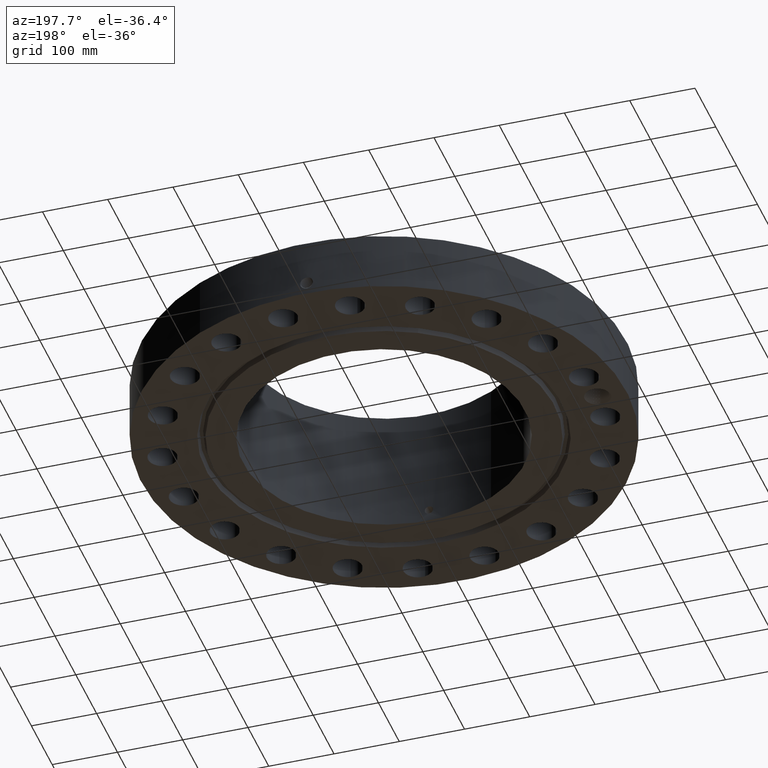
[diagram: clean part render]
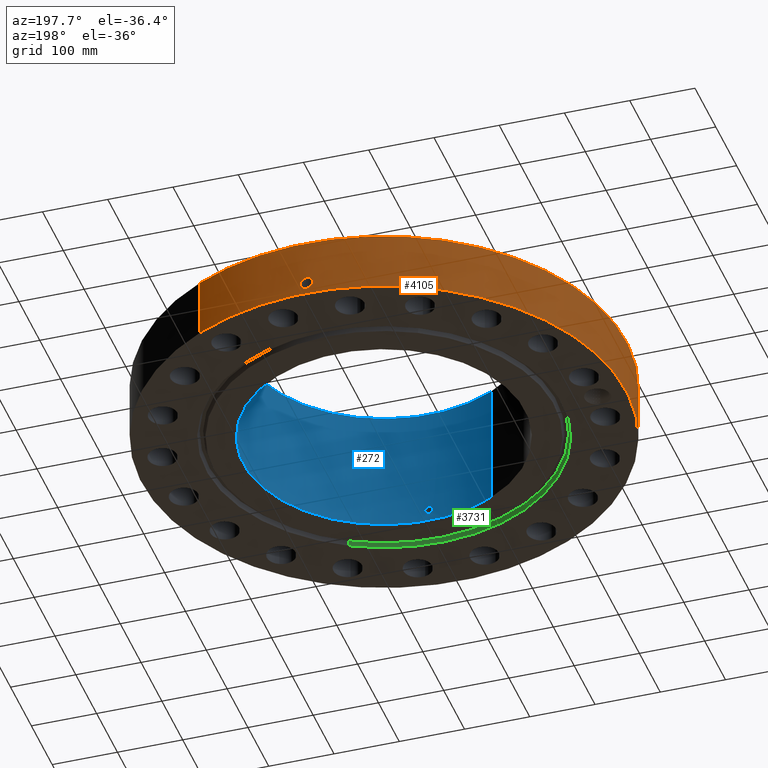
[diagram: same view with three faces highlighted in distinct colors, each labeled with its STEP entity id]
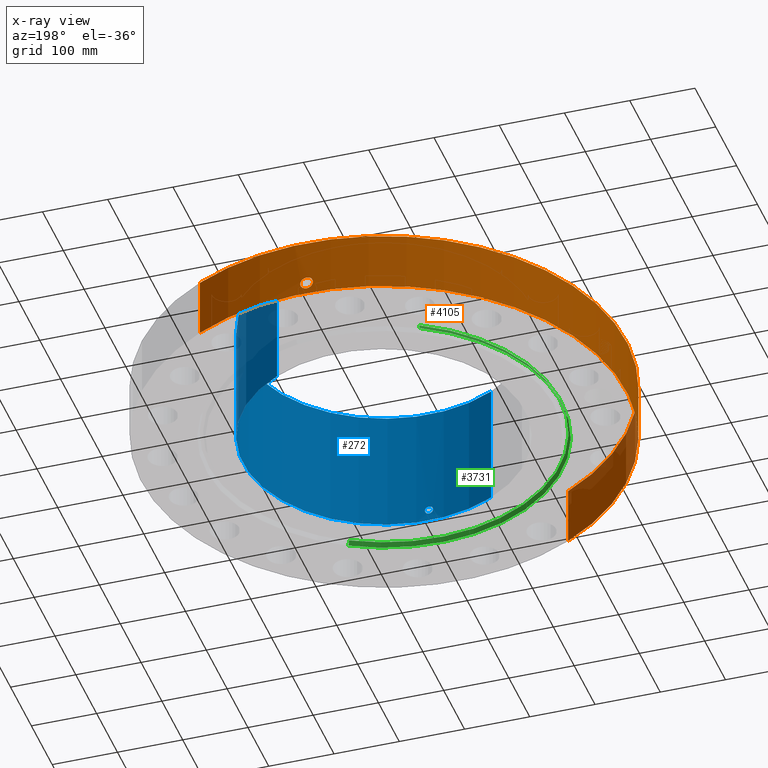
[diagram: x-ray of the same camera — body ghosted, the three highlighted faces saturated]
A machine part, auxiliary view with three faces highlighted in distinct colors.
The next image is the same camera in x-ray (body ghosted, the three faces saturated) — at least one of them is partly hidden behind the body in this view.
Their STEP definitions:

[orange] entity #4105 — the highlighted cylindrical surface (partial cylindrical patch) has radius 371.475 mm, axis along (0, 0, -1).
#2927=AXIS2_PLACEMENT_3D('Circle Axis2P3D',#2925,#2926,$) ;
#3991=AXIS2_PLACEMENT_3D('Cylinder Axis2P3D',#3988,#3989,#3990) ;
#3995=AXIS2_PLACEMENT_3D('Circle Axis2P3D',#3993,#3994,$) ;
#2920=CARTESIAN_POINT('Vertex',(7.01159850211,12.8346449677,3.56200000001)) ;
#2922=CARTESIAN_POINT('Vertex',(-7.01159850211,-12.8346449677,3.56200000001)) ;
#2925=CARTESIAN_POINT('Axis2P3D Location',(0.,0.,3.56200000001)) ;
#3988=CARTESIAN_POINT('Axis2P3D Location',(0.,0.,3.78100000002)) ;
#3993=CARTESIAN_POINT('Axis2P3D Location',(0.,0.,1.67844740731E-015)) ;
#3997=CARTESIAN_POINT('Vertex',(-7.01159850211,-12.8346449677,2.23792987641E-015)) ;
#3999=CARTESIAN_POINT('Vertex',(7.01159850211,12.8346449677,2.23792987641E-015)) ;
#4002=CARTESIAN_POINT('Line Origine',(-7.01159850211,-12.8346449677,1.78100000001)) ;
#4007=CARTESIAN_POINT('Line Origine',(7.01159850211,12.8346449677,1.78100000001)) ;
#4019=CARTESIAN_POINT('Control Point',(-0.000716086753315,14.6249999825,1.1041184612)) ;
#4020=CARTESIAN_POINT('Control Point',(-0.0190203187329,14.6249990863,1.10408148988)) ;
#4021=CARTESIAN_POINT('Control Point',(-0.0373213430736,14.6249635537,1.10262130561)) ;
#4022=CARTESIAN_POINT('Control Point',(-0.0553996221658,14.6248950726,1.09975560669)) ;
#4023=CARTESIAN_POINT('Vertex',(-0.000715719218029,14.6249999825,1.10411851049)) ;
#4025=CARTESIAN_POINT('Vertex',(-0.0553907382761,14.6248953593,1.09975703323)) ;
#4029=CARTESIAN_POINT('Control Point',(-0.0553906426159,14.6248951066,1.09975648393)) ;
#4030=CARTESIAN_POINT('Control Point',(-0.095791087221,14.6247420931,1.09531626056)) ;
#4031=CARTESIAN_POINT('Control Point',(-0.135547313126,14.6244176887,1.08352583264)) ;
#4032=CARTESIAN_POINT('Control Point',(-0.172161792286,14.6239866425,1.06517074421)) ;
#4033=CARTESIAN_POINT('Vertex',(-0.172161792286,14.6239866425,1.06517074421)) ;
#4037=CARTESIAN_POINT('Control Point',(-0.0309704717696,14.6249672079,0.341185931315)) ;
#4038=CARTESIAN_POINT('Control Point',(-0.0960970499705,14.624829293,0.34943039741)) ;
#4039=CARTESIAN_POINT('Control Point',(-0.159165957785,14.6243332142,0.37129232546)) ;
#4040=CARTESIAN_POINT('Control Point',(-0.21621629432,14.6235308002,0.406104490882)) ;
#4041=CARTESIAN_POINT('Control Point',(-0.288565984677,14.6222181906,0.474194043714)) ;
#4042=CARTESIAN_POINT('Control Point',(-0.336122439635,14.6211483161,0.558637787357)) ;
#4043=CARTESIAN_POINT('Control Point',(-0.349159052226,14.6208369788,0.588701529227)) ;
#4044=CARTESIAN_POINT('Control Point',(-0.371366298723,14.620290059,0.658954862142)) ;
#4045=CARTESIAN_POINT('Control Point',(-0.37685243339,14.6201424353,0.732133985844)) ;
#4046=CARTESIAN_POINT('Control Point',(-0.374588858488,14.620202394,0.772952421598)) ;
#4047=CARTESIAN_POINT('Control Point',(-0.356196992635,14.620681159,0.870678338789)) ;
#4048=CARTESIAN_POINT('Control Point',(-0.307903907606,14.6218049341,0.957874328974)) ;
#4049=CARTESIAN_POINT('Control Point',(-0.269657987083,14.6226140453,1.00315422222)) ;
#4050=CARTESIAN_POINT('Control Point',(-0.223443498129,14.6233829254,1.03946287241)) ;
#4051=CARTESIAN_POINT('Control Point',(-0.172161792286,14.6239866425,1.06517074421)) ;
#4052=CARTESIAN_POINT('Vertex',(-0.0309704717696,14.6249672079,0.341185931315)) ;
#4056=CARTESIAN_POINT('Control Point',(-0.0309704717696,14.6249672079,0.341185931315)) ;
#4057=CARTESIAN_POINT('Control Point',(-0.0206420517921,14.6249890798,0.340874084726)) ;
#4058=CARTESIAN_POINT('Control Point',(-0.0103062211378,14.625000002,0.340937171896)) ;
#4059=CARTESIAN_POINT('Control Point',(2.72878356085E-006,14.6250000001,0.341374667805)) ;
#4060=CARTESIAN_POINT('Vertex',(2.72878354058E-006,14.6250000001,0.341374667805)) ;
#4064=CARTESIAN_POINT('Control Point',(0.192662631068,14.6237309231,0.397344435508)) ;
#4065=CARTESIAN_POINT('Control Point',(0.149019870127,14.6243059015,0.371999869189)) ;
#4066=CARTESIAN_POINT('Control Point',(0.101119075317,14.6247640417,0.35376574911)) ;
#4067=CARTESIAN_POINT('Control Point',(0.0508066407998,14.6249999906,0.343530706905)) ;
#4068=CARTESIAN_POINT('Control Point',(2.72878353485E-006,14.6250000001,0.341374667805)) ;
#4069=CARTESIAN_POINT('Vertex',(0.192662631068,14.6237309231,0.397344435508)) ;
#4073=CARTESIAN_POINT('Control Point',(0.192662631068,14.6237309231,0.397344435508)) ;
#4074=CARTESIAN_POINT('Control Point',(0.249518043717,14.6229818726,0.430361953657)) ;
#4075=CARTESIAN_POINT('Control Point',(0.299619064551,14.6220454516,0.474691396433)) ;
#4076=CARTESIAN_POINT('Control Point',(0.339823000149,14.6210933496,0.528791236272)) ;
#4077=CARTESIAN_POINT('Control Point',(0.384112236459,14.6199651971,0.626956102256)) ;
#4078=CARTESIAN_POINT('Control Point',(0.392725031476,14.6197247345,0.732244386194)) ;
#4079=CARTESIAN_POINT('Control Point',(0.390620686245,14.6197828204,0.772393678272)) ;
#4080=CARTESIAN_POINT('Control Point',(0.376487312055,14.6201662088,0.847281981516)) ;
#4081=CARTESIAN_POINT('Control Point',(0.344392716028,14.6209577611,0.915701625664)) ;
#4082=CARTESIAN_POINT('Control Point',(0.325332832573,14.6214042256,0.946122653858)) ;
#4083=CARTESIAN_POINT('Control Point',(0.263575029156,14.6227270884,1.02259978849)) ;
#4084=CARTESIAN_POINT('Control Point',(0.180406457799,14.6240432514,1.07561246053)) ;
#4085=CARTESIAN_POINT('Control Point',(0.121571567812,14.6246891249,1.09767108549)) ;
#4086=CARTESIAN_POINT('Control Point',(0.0603045228671,14.6250001067,1.10711089422)) ;
#4087=CARTESIAN_POINT('Control Point',(-2.58579355531E-005,14.625,1.1041529843)) ;
#4088=CARTESIAN_POINT('Vertex',(-2.58579355479E-005,14.625,1.1041529843)) ;
#4092=CARTESIAN_POINT('Control Point',(-0.000715719208403,14.6249999825,1.10411851047)) ;
#4093=CARTESIAN_POINT('Control Point',(-0.000370813091107,14.6249999994,1.10413607165)) ;
#4094=CARTESIAN_POINT('Control Point',(-2.58579406625E-005,14.625,1.1041529843)) ;
#2926=DIRECTION('Axis2P3D Direction',(0.,0.,-0.0393700787402)) ;
#3989=DIRECTION('Axis2P3D Direction',(0.,0.,-0.0393700787402)) ;
#3990=DIRECTION('Axis2P3D XDirection',(0.0188750212049,0.0345504945626,0.)) ;
#3994=DIRECTION('Axis2P3D Direction',(0.,0.,-0.0393700787402)) ;
#4003=DIRECTION('Vector Direction',(0.,0.,-0.0393700787402)) ;
#4008=DIRECTION('Vector Direction',(0.,0.,-0.0393700787402)) ;
#4004=VECTOR('Line Direction',#4003,0.0393700787402) ;
#4009=VECTOR('Line Direction',#4008,0.0393700787402) ;
#4013=ORIENTED_EDGE('',*,*,#4001,.F.) ;
#4014=ORIENTED_EDGE('',*,*,#4006,.T.) ;
#4015=ORIENTED_EDGE('',*,*,#2929,.T.) ;
#4016=ORIENTED_EDGE('',*,*,#4011,.F.) ;
#4097=ORIENTED_EDGE('',*,*,#4027,.T.) ;
#4098=ORIENTED_EDGE('',*,*,#4035,.T.) ;
#4099=ORIENTED_EDGE('',*,*,#4054,.F.) ;
#4100=ORIENTED_EDGE('',*,*,#4062,.T.) ;
#4101=ORIENTED_EDGE('',*,*,#4071,.F.) ;
#4102=ORIENTED_EDGE('',*,*,#4090,.T.) ;
#4103=ORIENTED_EDGE('',*,*,#4095,.F.) ;
#4104=FACE_BOUND('',#4096,.T.) ;
#4105=ADVANCED_FACE('PartBody',(#4017,#4104),#3992,.T.) ;
#4018=B_SPLINE_CURVE_WITH_KNOTS('',3,(#4019,#4020,#4021,#4022),.UNSPECIFIED.,.F.,.U.,(4,4),(34.616560801,36.6472417303),.UNSPECIFIED.) ;
#4028=B_SPLINE_CURVE_WITH_KNOTS('',3,(#4029,#4030,#4031,#4032),.UNSPECIFIED.,.F.,.U.,(4,4),(0.,4.56688664104),.UNSPECIFIED.) ;
#4036=B_SPLINE_CURVE_WITH_KNOTS('',5,(#4037,#4038,#4039,#4040,#4041,#4042,#4043,#4044,#4045,#4046,#4047,#4048,#4049,#4050,#4051),.UNSPECIFIED.,.F.,.U.,(6,3,3,3,6),(0.,11.4086060947,17.2512745477,24.6138259225,35.2743509023),.UNSPECIFIED.) ;
#4055=B_SPLINE_CURVE_WITH_KNOTS('',3,(#4056,#4057,#4058,#4059),.UNSPECIFIED.,.F.,.U.,(4,4),(0.,1.07740583904),.UNSPECIFIED.) ;
#4063=B_SPLINE_CURVE_WITH_KNOTS('',4,(#4064,#4065,#4066,#4067,#4068),.UNSPECIFIED.,.F.,.U.,(5,5),(0.,7.07947066556),.UNSPECIFIED.) ;
#4072=B_SPLINE_CURVE_WITH_KNOTS('',5,(#4073,#4074,#4075,#4076,#4077,#4078,#4079,#4080,#4081,#4082,#4083,#4084,#4085,#4086,#4087),.UNSPECIFIED.,.F.,.U.,(6,3,3,3,6),(0.,11.5284358822,18.6014747783,25.0195537038,36.2965540056),.UNSPECIFIED.) ;
#4091=B_SPLINE_CURVE_WITH_KNOTS('',2,(#4092,#4093,#4094),.UNSPECIFIED.,.F.,.U.,(3,3),(1.02315573588,1.04894744785),.UNSPECIFIED.) ;
#2928=CIRCLE('generated circle',#2927,14.6250000001) ;
#3996=CIRCLE('generated circle',#3995,14.6250000001) ;
#3992=CYLINDRICAL_SURFACE('generated cylinder',#3991,14.6250000001) ;
#2929=EDGE_CURVE('',#2923,#2921,#2928,.T.) ;
#4001=EDGE_CURVE('',#3998,#4000,#3996,.T.) ;
#4006=EDGE_CURVE('',#3998,#2923,#4005,.F.) ;
#4011=EDGE_CURVE('',#4000,#2921,#4010,.F.) ;
#4027=EDGE_CURVE('',#4024,#4026,#4018,.T.) ;
#4035=EDGE_CURVE('',#4026,#4034,#4028,.T.) ;
#4054=EDGE_CURVE('',#4053,#4034,#4036,.T.) ;
#4062=EDGE_CURVE('',#4053,#4061,#4055,.T.) ;
#4071=EDGE_CURVE('',#4070,#4061,#4063,.T.) ;
#4090=EDGE_CURVE('',#4070,#4089,#4072,.T.) ;
#4095=EDGE_CURVE('',#4024,#4089,#4091,.T.) ;
#4012=EDGE_LOOP('',(#4013,#4014,#4015,#4016)) ;
#4096=EDGE_LOOP('',(#4097,#4098,#4099,#4100,#4101,#4102,#4103)) ;
#4017=FACE_OUTER_BOUND('',#4012,.T.) ;
#4005=LINE('Line',#4002,#4004) ;
#4010=LINE('Line',#4007,#4009) ;
#2921=VERTEX_POINT('',#2920) ;
#2923=VERTEX_POINT('',#2922) ;
#3998=VERTEX_POINT('',#3997) ;
#4000=VERTEX_POINT('',#3999) ;
#4024=VERTEX_POINT('',#4023) ;
#4026=VERTEX_POINT('',#4025) ;
#4034=VERTEX_POINT('',#4033) ;
#4053=VERTEX_POINT('',#4052) ;
#4061=VERTEX_POINT('',#4060) ;
#4070=VERTEX_POINT('',#4069) ;
#4089=VERTEX_POINT('',#4088) ;

[blue] entity #272 — the highlighted cylindrical surface (partial cylindrical patch) has radius 215.9 mm, axis along (0, 0, -1).
#232=AXIS2_PLACEMENT_3D('Cylinder Axis2P3D',#229,#230,#231) ;
#236=AXIS2_PLACEMENT_3D('Circle Axis2P3D',#234,#235,$) ;
#252=AXIS2_PLACEMENT_3D('Circle Axis2P3D',#250,#251,$) ;
#81=CARTESIAN_POINT('Control Point',(0.219395640473,-8.49716809022,0.630143615351)) ;
#82=CARTESIAN_POINT('Control Point',(0.194443120276,-8.49781236066,0.584468333505)) ;
#83=CARTESIAN_POINT('Control Point',(0.157605637395,-8.49867184173,0.545288872028)) ;
#84=CARTESIAN_POINT('Control Point',(0.111108972176,-8.49950770956,0.516757343957)) ;
#85=CARTESIAN_POINT('Control Point',(0.0336745555581,-8.50017275746,0.494117586692)) ;
#86=CARTESIAN_POINT('Control Point',(-0.0446699568783,-8.49994295234,0.50194347102)) ;
#87=CARTESIAN_POINT('Control Point',(-0.0702993916259,-8.49976455287,0.507955894306)) ;
#88=CARTESIAN_POINT('Control Point',(-0.143955076644,-8.49897618019,0.535787177749)) ;
#89=CARTESIAN_POINT('Control Point',(-0.203242491968,-8.49768931622,0.590500574352)) ;
#90=CARTESIAN_POINT('Control Point',(-0.232208128436,-8.49684524725,0.636738850326)) ;
#91=CARTESIAN_POINT('Control Point',(-0.255840247337,-8.49615133494,0.71488583286)) ;
#92=CARTESIAN_POINT('Control Point',(-0.248283244606,-8.49637304966,0.794251393325)) ;
#93=CARTESIAN_POINT('Control Point',(-0.242049465969,-8.4965585995,0.820814586836)) ;
#94=CARTESIAN_POINT('Control Point',(-0.232315759571,-8.49683449463,0.846206265283)) ;
#95=CARTESIAN_POINT('Control Point',(-0.219395640473,-8.49716809022,0.869856384655)) ;
#96=CARTESIAN_POINT('Vertex',(0.219395640473,-8.49716809022,0.630143615351)) ;
#98=CARTESIAN_POINT('Vertex',(-0.219395640473,-8.49716809022,0.869856384655)) ;
#206=CARTESIAN_POINT('Control Point',(-0.219395640473,-8.49716809022,0.869856384655)) ;
#207=CARTESIAN_POINT('Control Point',(-0.194443120273,-8.49781236066,0.915531666506)) ;
#208=CARTESIAN_POINT('Control Point',(-0.157605637387,-8.49867184173,0.954711127986)) ;
#209=CARTESIAN_POINT('Control Point',(-0.111108972193,-8.49950770956,0.983242656044)) ;
#210=CARTESIAN_POINT('Control Point',(-0.0336745555695,-8.50017275746,1.00588241331)) ;
#211=CARTESIAN_POINT('Control Point',(0.0446699568719,-8.49994295234,0.998056528987)) ;
#212=CARTESIAN_POINT('Control Point',(0.0702993916224,-8.49976455287,0.992044105701)) ;
#213=CARTESIAN_POINT('Control Point',(0.143955076644,-8.49897618019,0.964212822258)) ;
#214=CARTESIAN_POINT('Control Point',(0.203242491971,-8.49768931622,0.909499425653)) ;
#215=CARTESIAN_POINT('Control Point',(0.232208128431,-8.49684524725,0.863261149692)) ;
#216=CARTESIAN_POINT('Control Point',(0.255840247315,-8.49615133494,0.785114167226)) ;
#217=CARTESIAN_POINT('Control Point',(0.24828324462,-8.49637304966,0.705748606831)) ;
#218=CARTESIAN_POINT('Control Point',(0.242049465917,-8.4965585995,0.679185413034)) ;
#219=CARTESIAN_POINT('Control Point',(0.232315759536,-8.49683449463,0.653793734659)) ;
#220=CARTESIAN_POINT('Control Point',(0.219395640473,-8.49716809022,0.630143615351)) ;
#229=CARTESIAN_POINT('Axis2P3D Location',(0.,0.,3.78100000002)) ;
#234=CARTESIAN_POINT('Axis2P3D Location',(0.,0.,7.56200000003)) ;
#238=CARTESIAN_POINT('Vertex',(4.07511707815,7.4594517761,7.56200000003)) ;
#240=CARTESIAN_POINT('Vertex',(-4.07511707815,-7.4594517761,7.56200000003)) ;
#243=CARTESIAN_POINT('Line Origine',(4.07511707815,7.4594517761,3.78100000002)) ;
#247=CARTESIAN_POINT('Vertex',(4.07511707815,7.4594517761,-5.59482469102E-014)) ;
#250=CARTESIAN_POINT('Axis2P3D Location',(0.,0.,-5.59482469102E-014)) ;
#254=CARTESIAN_POINT('Vertex',(-4.07511707815,-7.4594517761,-5.59482469102E-014)) ;
#257=CARTESIAN_POINT('Line Origine',(-4.07511707815,-7.4594517761,3.78100000002)) ;
#230=DIRECTION('Axis2P3D Direction',(0.,0.,-0.0393700787402)) ;
#231=DIRECTION('Axis2P3D XDirection',(-0.0188750212049,-0.0345504945626,0.)) ;
#235=DIRECTION('Axis2P3D Direction',(0.,0.,-0.0393700787402)) ;
#244=DIRECTION('Vector Direction',(0.,0.,-0.0393700787402)) ;
#251=DIRECTION('Axis2P3D Direction',(0.,0.,-0.0393700787402)) ;
#258=DIRECTION('Vector Direction',(0.,0.,-0.0393700787402)) ;
#245=VECTOR('Line Direction',#244,0.0393700787402) ;
#259=VECTOR('Line Direction',#258,0.0393700787402) ;
#263=ORIENTED_EDGE('',*,*,#242,.F.) ;
#264=ORIENTED_EDGE('',*,*,#249,.T.) ;
#265=ORIENTED_EDGE('',*,*,#256,.T.) ;
#266=ORIENTED_EDGE('',*,*,#261,.F.) ;
#269=ORIENTED_EDGE('',*,*,#100,.F.) ;
#270=ORIENTED_EDGE('',*,*,#221,.F.) ;
#271=FACE_BOUND('',#268,.T.) ;
#272=ADVANCED_FACE('PartBody',(#267,#271),#233,.F.) ;
#80=B_SPLINE_CURVE_WITH_KNOTS('',5,(#81,#82,#83,#84,#85,#86,#87,#88,#89,#90,#91,#92,#93,#94,#95),.UNSPECIFIED.,.F.,.U.,(6,3,3,3,6),(0.,9.34857122398,14.0228372772,23.3728719372,28.2134512715),.UNSPECIFIED.) ;
#205=B_SPLINE_CURVE_WITH_KNOTS('',5,(#206,#207,#208,#209,#210,#211,#212,#213,#214,#215,#216,#217,#218,#219,#220),.UNSPECIFIED.,.F.,.U.,(6,3,3,3,6),(0.,9.348571225,14.0228372781,23.3728719387,28.2134512601),.UNSPECIFIED.) ;
#237=CIRCLE('generated circle',#236,8.50000000003) ;
#253=CIRCLE('generated circle',#252,8.50000000003) ;
#233=CYLINDRICAL_SURFACE('generated cylinder',#232,8.50000000003) ;
#100=EDGE_CURVE('',#97,#99,#80,.T.) ;
#221=EDGE_CURVE('',#99,#97,#205,.T.) ;
#242=EDGE_CURVE('',#239,#241,#237,.T.) ;
#249=EDGE_CURVE('',#239,#248,#246,.T.) ;
#256=EDGE_CURVE('',#248,#255,#253,.T.) ;
#261=EDGE_CURVE('',#241,#255,#260,.T.) ;
#262=EDGE_LOOP('',(#263,#264,#265,#266)) ;
#268=EDGE_LOOP('',(#269,#270)) ;
#267=FACE_OUTER_BOUND('',#262,.T.) ;
#246=LINE('Line',#243,#245) ;
#260=LINE('Line',#257,#259) ;
#97=VERTEX_POINT('',#96) ;
#99=VERTEX_POINT('',#98) ;
#239=VERTEX_POINT('',#238) ;
#241=VERTEX_POINT('',#240) ;
#248=VERTEX_POINT('',#247) ;
#255=VERTEX_POINT('',#254) ;

[green] entity #3731 — the highlighted conical surface has half-angle 23 deg.
#2635=AXIS2_PLACEMENT_3D('Circle Axis2P3D',#2633,#2634,$) ;
#3692=AXIS2_PLACEMENT_3D('Cone Axis2P3D',#3689,#3690,#3691) ;
#3722=AXIS2_PLACEMENT_3D('Circle Axis2P3D',#3720,#3721,$) ;
#2611=CARTESIAN_POINT('Vertex',(5.08661983595,-9.31099515472,0.293721933856)) ;
#2613=CARTESIAN_POINT('Vertex',(-5.08661983595,9.31099515472,0.293721933856)) ;
#2633=CARTESIAN_POINT('Axis2P3D Location',(0.,0.,0.293721933856)) ;
#3689=CARTESIAN_POINT('Axis2P3D Location',(0.,0.,0.293721933856)) ;
#3698=CARTESIAN_POINT('Vertex',(-5.14639344417,9.42041001065,0.)) ;
#3700=CARTESIAN_POINT('Vertex',(5.14639344417,-9.42041001065,-1.60851209867E-015)) ;
#3703=CARTESIAN_POINT('Line Origine',(5.11650664006,-9.36570258269,0.146860966928)) ;
#3708=CARTESIAN_POINT('Line Origine',(-5.11650664006,9.36570258269,0.146860966928)) ;
#3720=CARTESIAN_POINT('Axis2P3D Location',(0.,0.,0.)) ;
#2634=DIRECTION('Axis2P3D Direction',(0.,0.,0.0393700787402)) ;
#3690=DIRECTION('Axis2P3D Direction',(-0.,-0.,-0.0393700787402)) ;
#3691=DIRECTION('Axis2P3D XDirection',(0.0188750212049,-0.0345504945626,0.)) ;
#3704=DIRECTION('Vector Direction',(0.00737505833565,-0.0134999537303,-0.0362403485611)) ;
#3709=DIRECTION('Vector Direction',(-0.00737505833565,0.0134999537303,-0.0362403485611)) ;
#3721=DIRECTION('Axis2P3D Direction',(0.,0.,-0.0393700787402)) ;
#3705=VECTOR('Line Direction',#3704,0.0393700787402) ;
#3710=VECTOR('Line Direction',#3709,0.0393700787402) ;
#3726=ORIENTED_EDGE('',*,*,#3724,.T.) ;
#3727=ORIENTED_EDGE('',*,*,#3712,.T.) ;
#3728=ORIENTED_EDGE('',*,*,#2637,.T.) ;
#3729=ORIENTED_EDGE('',*,*,#3707,.F.) ;
#3731=ADVANCED_FACE('PartBody',(#3730),#3693,.F.) ;
#2636=CIRCLE('generated circle',#2635,10.6098224362) ;
#3723=CIRCLE('generated circle',#3722,10.7345) ;
#3693=CONICAL_SURFACE('Cone',#3692,10.6098224362,0.401425727959) ;
#2637=EDGE_CURVE('',#2614,#2612,#2636,.T.) ;
#3707=EDGE_CURVE('',#3701,#2612,#3706,.F.) ;
#3712=EDGE_CURVE('',#3699,#2614,#3711,.F.) ;
#3724=EDGE_CURVE('',#3701,#3699,#3723,.T.) ;
#3725=EDGE_LOOP('',(#3726,#3727,#3728,#3729)) ;
#3730=FACE_OUTER_BOUND('',#3725,.T.) ;
#3706=LINE('Line',#3703,#3705) ;
#3711=LINE('Line',#3708,#3710) ;
#2612=VERTEX_POINT('',#2611) ;
#2614=VERTEX_POINT('',#2613) ;
#3699=VERTEX_POINT('',#3698) ;
#3701=VERTEX_POINT('',#3700) ;